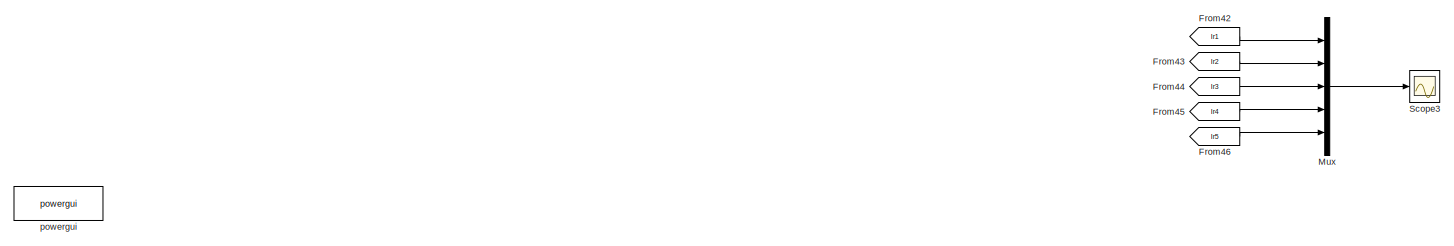
[diagram: root canvas - part 1/4, top center region]
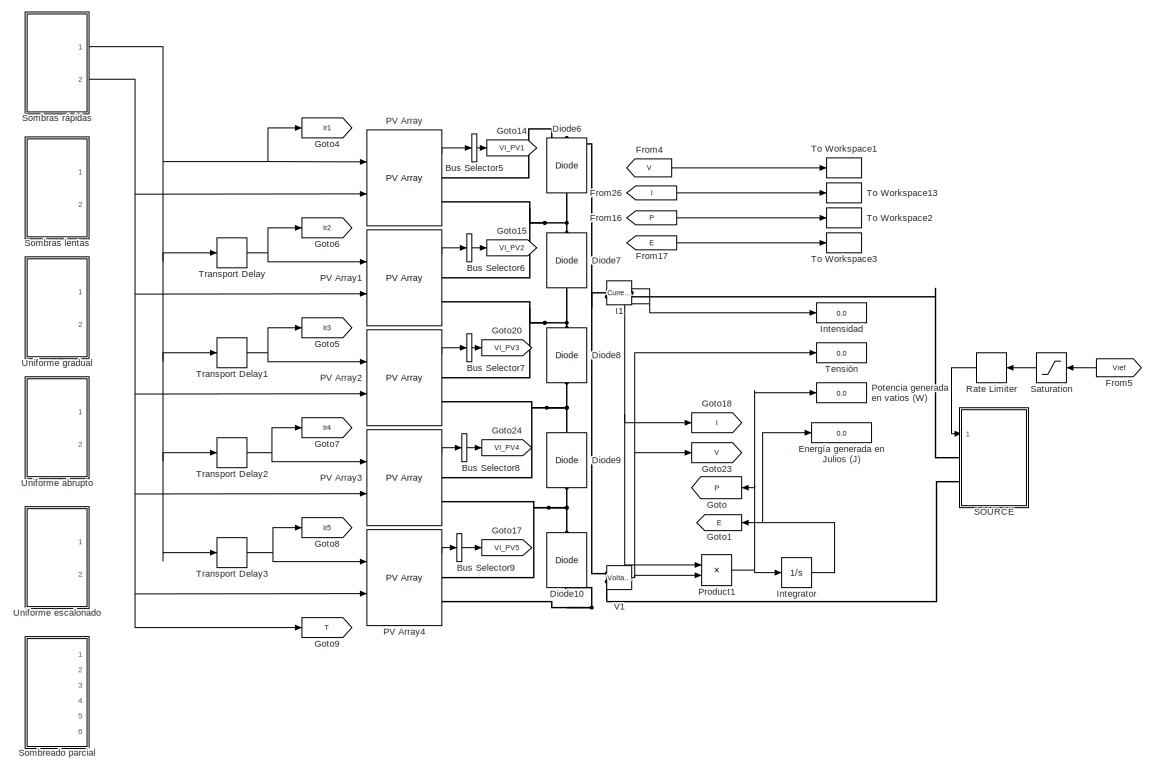
[diagram: root canvas - part 2/4, top right region]
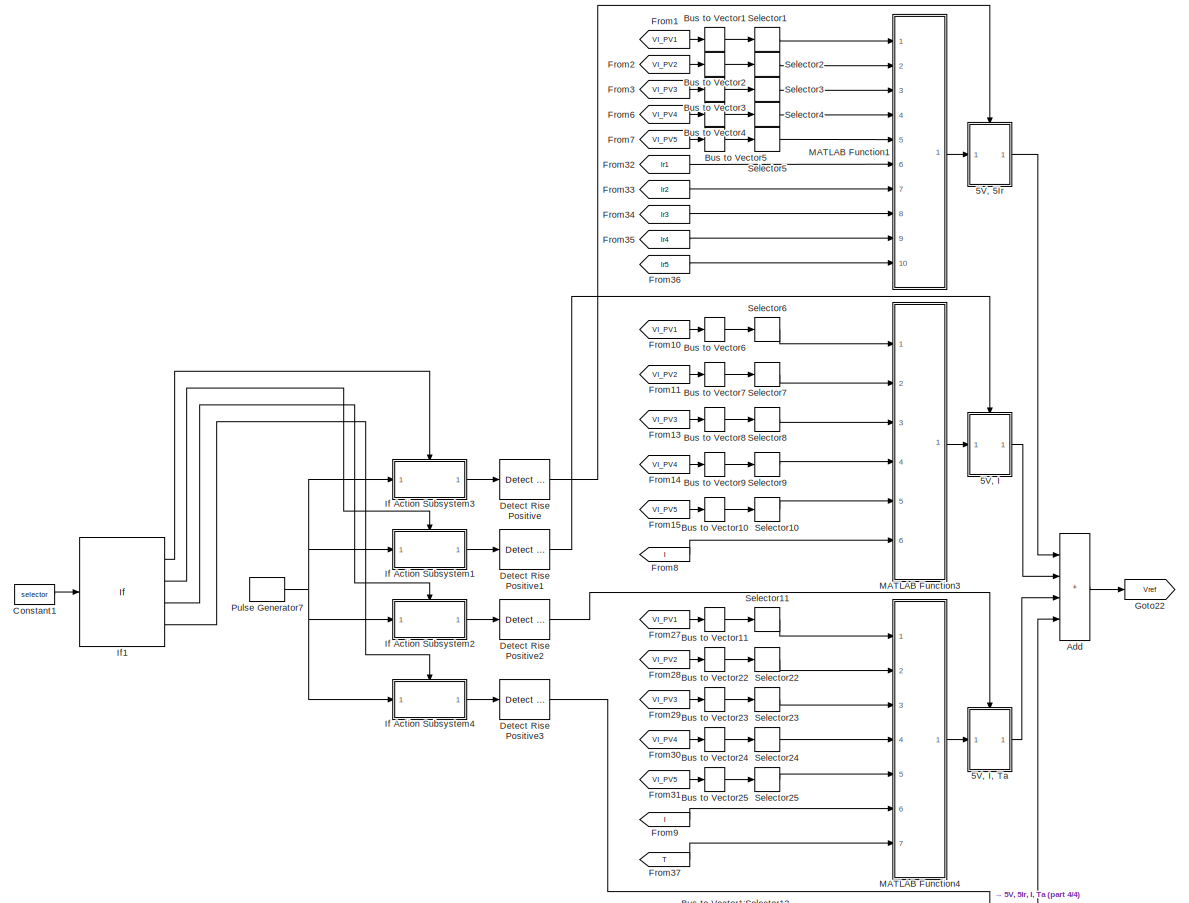
[diagram: root canvas - part 3/4, bottom right region]
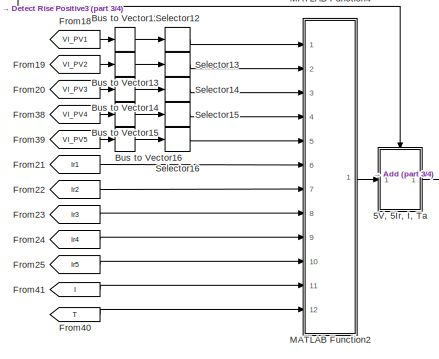
[diagram: root canvas - part 4/4, bottom right region]
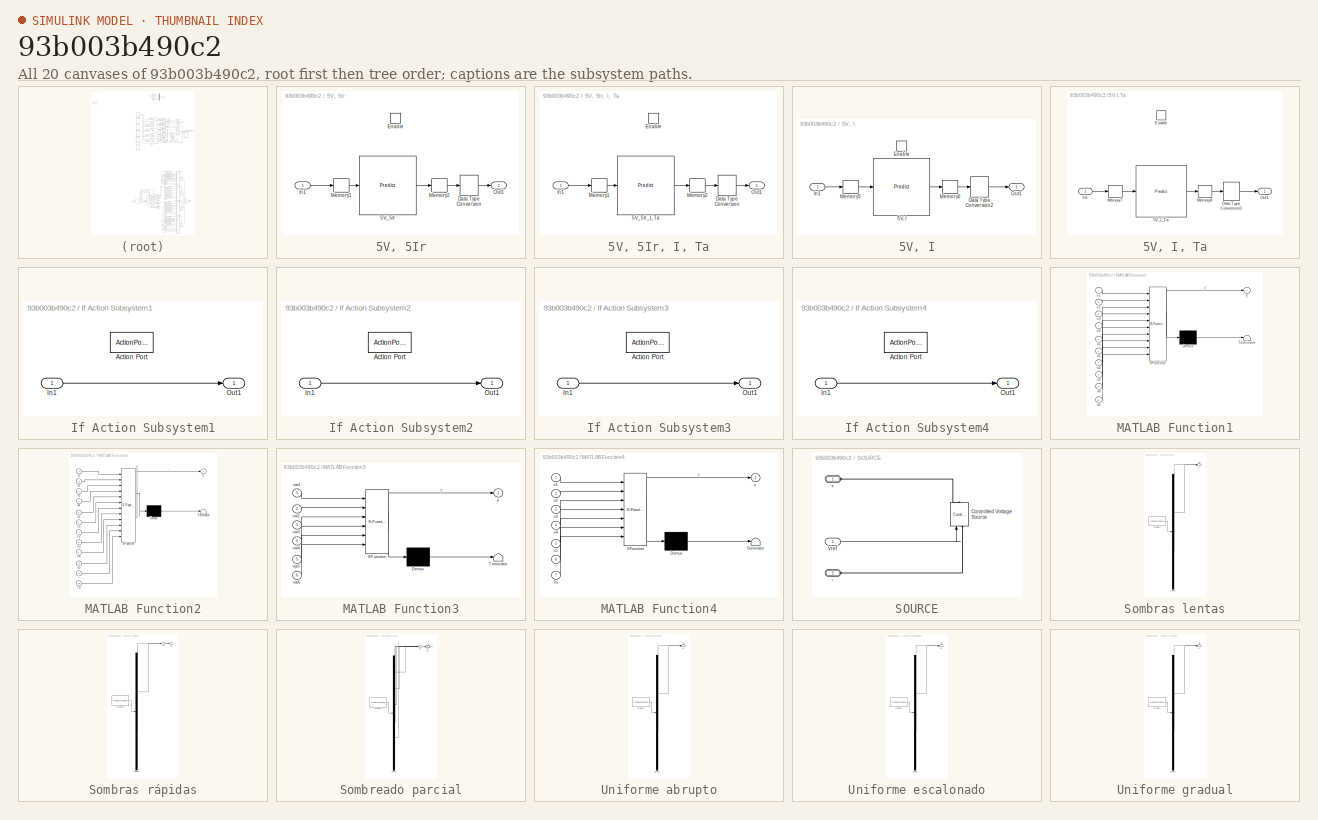
[diagram: thumbnail index - all 20 canvases of the model, root first then tree order]
MODEL slx_93b003b490c2
KIND model
CONFIG AbsTol = auto
CONFIG EnableMultiTasking = off
CONFIG FixedStep = auto
CONFIG MaxStep = auto
CONFIG MinStep = auto
CONFIG RelTol = 1e-4
CONFIG SampleTimeConstraint = Unconstrained
CONFIG SolverName = VariableStepAuto
CONFIG StartTime = 0.0
CONFIG StopTime = 60
BLOCK [SubSystem] 5V, 5Ir
  Ports = [1, 1, 1]
  RequestExecContextInheritance = off
BLOCK [SubSystem] 5V, 5Ir, I, Ta
  Ports = [1, 1, 1]
  RequestExecContextInheritance = off
BLOCK [Reference] 5V, 5Ir, I, Ta/5V_5Ir_I_Ta  REF=deeplib/Predict
  Ports = [1, 1]
  SourceBlock = deeplib/Predict
  SourceProductBaseCode = NN
  SourceType = Predict
BLOCK [DataTypeConversion] 5V, 5Ir, I, Ta/Data Type Conversion
  OutDataTypeStr = double
  RndMeth = Floor
  SaturateOnIntegerOverflow = off
BLOCK [EnablePort] 5V, 5Ir, I, Ta/Enable
  Ports = []
BLOCK [Inport] 5V, 5Ir, I, Ta/In1
BLOCK [Memory] 5V, 5Ir, I, Ta/Memory1
BLOCK [Memory] 5V, 5Ir, I, Ta/Memory2
BLOCK [Outport] 5V, 5Ir, I, Ta/Out1
BLOCK [Reference] 5V, 5Ir/5V_5Ir  REF=deeplib/Predict
  Ports = [1, 1]
  SourceBlock = deeplib/Predict
  SourceProductBaseCode = NN
  SourceType = Predict
BLOCK [DataTypeConversion] 5V, 5Ir/Data Type Conversion
  OutDataTypeStr = double
  RndMeth = Floor
  SaturateOnIntegerOverflow = off
BLOCK [EnablePort] 5V, 5Ir/Enable
  Ports = []
BLOCK [Inport] 5V, 5Ir/In1
BLOCK [Memory] 5V, 5Ir/Memory1
BLOCK [Memory] 5V, 5Ir/Memory2
BLOCK [Outport] 5V, 5Ir/Out1
BLOCK [SubSystem] 5V, I
  Ports = [1, 1, 1]
  RequestExecContextInheritance = off
BLOCK [SubSystem] 5V, I, Ta
  Ports = [1, 1, 1]
  RequestExecContextInheritance = off
BLOCK [Reference] 5V, I, Ta/5V_I_Ta  REF=deeplib/Predict
  Ports = [1, 1]
  SourceBlock = deeplib/Predict
  SourceProductBaseCode = NN
  SourceType = Predict
BLOCK [DataTypeConversion] 5V, I, Ta/Data Type Conversion3
  OutDataTypeStr = double
  RndMeth = Floor
  SaturateOnIntegerOverflow = off
BLOCK [EnablePort] 5V, I, Ta/Enable
  Ports = []
BLOCK [Inport] 5V, I, Ta/In1
BLOCK [Memory] 5V, I, Ta/Memory7
BLOCK [Memory] 5V, I, Ta/Memory8
BLOCK [Outport] 5V, I, Ta/Out1
BLOCK [Reference] 5V, I/5V, I  REF=deeplib/Predict
  Ports = [1, 1]
  SourceBlock = deeplib/Predict
  SourceProductBaseCode = NN
  SourceType = Predict
BLOCK [DataTypeConversion] 5V, I/Data Type Conversion2
  OutDataTypeStr = double
  RndMeth = Floor
  SaturateOnIntegerOverflow = off
BLOCK [EnablePort] 5V, I/Enable
  Ports = []
BLOCK [Inport] 5V, I/In1
BLOCK [Memory] 5V, I/Memory5
BLOCK [Memory] 5V, I/Memory6
BLOCK [Outport] 5V, I/Out1
BLOCK [Sum] Add
  IconShape = rectangular
  Inputs = ++++
  Ports = [4, 1]
BLOCK [BusSelector] Bus Selector5
  NameLocation = top
  OutputAsBus = on
  OutputSignals = V_PV,I_PV
  Ports = [1, 1]
BLOCK [BusSelector] Bus Selector6
  OutputAsBus = on
  OutputSignals = V_PV,I_PV
  Ports = [1, 1]
BLOCK [BusSelector] Bus Selector7
  OutputAsBus = on
  OutputSignals = V_PV,I_PV
  Ports = [1, 1]
BLOCK [BusSelector] Bus Selector8
  OutputAsBus = on
  OutputSignals = V_PV,I_PV
  Ports = [1, 1]
BLOCK [BusSelector] Bus Selector9
  OutputAsBus = on
  OutputSignals = V_PV,I_PV
  Ports = [1, 1]
BLOCK [BusToVector] Bus to Vector1
BLOCK [BusToVector] Bus to Vector10
BLOCK [BusToVector] Bus to Vector11
BLOCK [BusToVector] Bus to Vector12
BLOCK [BusToVector] Bus to Vector13
BLOCK [BusToVector] Bus to Vector14
BLOCK [BusToVector] Bus to Vector15
BLOCK [BusToVector] Bus to Vector16
BLOCK [BusToVector] Bus to Vector2
BLOCK [BusToVector] Bus to Vector22
BLOCK [BusToVector] Bus to Vector23
BLOCK [BusToVector] Bus to Vector24
BLOCK [BusToVector] Bus to Vector25
BLOCK [BusToVector] Bus to Vector3
BLOCK [BusToVector] Bus to Vector4
BLOCK [BusToVector] Bus to Vector5
BLOCK [BusToVector] Bus to Vector6
BLOCK [BusToVector] Bus to Vector7
BLOCK [BusToVector] Bus to Vector8
BLOCK [BusToVector] Bus to Vector9
BLOCK [Constant] Constant1
  Value = selector
BLOCK [Reference] Detect Rise Positive  REF=simulink/Logic and Bit
Operations/Detect Rise
Positive
  Ports = [1, 1]
  SourceBlock = simulink/Logic and Bit\nOperations/Detect Rise\nPositive
  SourceProductBaseCode = SL
  SourceType = Detect Rise Positive
BLOCK [Reference] Detect Rise Positive1  REF=simulink/Logic and Bit
Operations/Detect Rise
Positive
  Ports = [1, 1]
  SourceBlock = simulink/Logic and Bit\nOperations/Detect Rise\nPositive
  SourceProductBaseCode = SL
  SourceType = Detect Rise Positive
BLOCK [Reference] Detect Rise Positive2  REF=simulink/Logic and Bit
Operations/Detect Rise
Positive
  Ports = [1, 1]
  SourceBlock = simulink/Logic and Bit\nOperations/Detect Rise\nPositive
  SourceProductBaseCode = SL
  SourceType = Detect Rise Positive
BLOCK [Reference] Detect Rise Positive3  REF=simulink/Logic and Bit
Operations/Detect Rise
Positive
  Ports = [1, 1]
  SourceBlock = simulink/Logic and Bit\nOperations/Detect Rise\nPositive
  SourceProductBaseCode = SL
  SourceType = Detect Rise Positive
BLOCK [Reference] Diode10  REF=spsDiodeLib/Diode
  NameLocation = right
  Ports = [0, 0, 0, 0, 0, 1, 1]
  SourceBlock = spsDiodeLib/Diode
  SourceProductBaseCode = PS
  SourceType = Diode
BLOCK [Reference] Diode6  REF=spsDiodeLib/Diode
  NameLocation = right
  Ports = [0, 0, 0, 0, 0, 1, 1]
  SourceBlock = spsDiodeLib/Diode
  SourceProductBaseCode = PS
  SourceType = Diode
BLOCK [Reference] Diode7  REF=spsDiodeLib/Diode
  NameLocation = right
  Ports = [0, 0, 0, 0, 0, 1, 1]
  SourceBlock = spsDiodeLib/Diode
  SourceProductBaseCode = PS
  SourceType = Diode
BLOCK [Reference] Diode8  REF=spsDiodeLib/Diode
  NameLocation = right
  Ports = [0, 0, 0, 0, 0, 1, 1]
  SourceBlock = spsDiodeLib/Diode
  SourceProductBaseCode = PS
  SourceType = Diode
BLOCK [Reference] Diode9  REF=spsDiodeLib/Diode
  NameLocation = right
  Ports = [0, 0, 0, 0, 0, 1, 1]
  SourceBlock = spsDiodeLib/Diode
  SourceProductBaseCode = PS
  SourceType = Diode
BLOCK [Display] Energía generada en Julios (J) 
  Decimation = 1
  Ports = [1]
BLOCK [From] From1
  GotoTag = VI_PV1
BLOCK [From] From10
  GotoTag = VI_PV1
BLOCK [From] From11
  GotoTag = VI_PV2
BLOCK [From] From13
  GotoTag = VI_PV3
BLOCK [From] From14
  GotoTag = VI_PV4
BLOCK [From] From15
  GotoTag = VI_PV5
BLOCK [From] From16
  GotoTag = P
BLOCK [From] From17
  GotoTag = E
BLOCK [From] From18
  GotoTag = VI_PV1
BLOCK [From] From19
  GotoTag = VI_PV2
BLOCK [From] From2
  GotoTag = VI_PV2
BLOCK [From] From20
  GotoTag = VI_PV3
BLOCK [From] From21
  GotoTag = Ir1
BLOCK [From] From22
  GotoTag = Ir2
BLOCK [From] From23
  GotoTag = Ir3
BLOCK [From] From24
  GotoTag = Ir4
BLOCK [From] From25
  GotoTag = Ir5
BLOCK [From] From26
  GotoTag = I
BLOCK [From] From27
  GotoTag = VI_PV1
BLOCK [From] From28
  GotoTag = VI_PV2
BLOCK [From] From29
  GotoTag = VI_PV3
BLOCK [From] From3
  GotoTag = VI_PV3
BLOCK [From] From30
  GotoTag = VI_PV4
BLOCK [From] From31
  GotoTag = VI_PV5
BLOCK [From] From32
  GotoTag = Ir1
BLOCK [From] From33
  GotoTag = Ir2
BLOCK [From] From34
  GotoTag = Ir3
BLOCK [From] From35
  GotoTag = Ir4
BLOCK [From] From36
  GotoTag = Ir5
BLOCK [From] From37
  GotoTag = T
BLOCK [From] From38
  GotoTag = VI_PV4
BLOCK [From] From39
  GotoTag = VI_PV5
BLOCK [From] From4
  GotoTag = V
BLOCK [From] From40
  GotoTag = T
BLOCK [From] From41
  GotoTag = I
BLOCK [From] From42
  Commented = on
  GotoTag = Ir1
BLOCK [From] From43
  Commented = on
  GotoTag = Ir2
BLOCK [From] From44
  Commented = on
  GotoTag = Ir3
BLOCK [From] From45
  Commented = on
  GotoTag = Ir4
BLOCK [From] From46
  Commented = on
  GotoTag = Ir5
BLOCK [From] From5
  GotoTag = Vref
BLOCK [From] From6
  GotoTag = VI_PV4
BLOCK [From] From7
  GotoTag = VI_PV5
BLOCK [From] From8
  GotoTag = I
BLOCK [From] From9
  GotoTag = I
BLOCK [Goto] Goto
  GotoTag = P
BLOCK [Goto] Goto1
  GotoTag = E
BLOCK [Goto] Goto14
  GotoTag = VI_PV1
  NameLocation = top
BLOCK [Goto] Goto15
  GotoTag = VI_PV2
BLOCK [Goto] Goto17
  GotoTag = VI_PV5
BLOCK [Goto] Goto18
  GotoTag = I
BLOCK [Goto] Goto20
  GotoTag = VI_PV3
BLOCK [Goto] Goto22
  GotoTag = Vref
BLOCK [Goto] Goto23
  GotoTag = V
BLOCK [Goto] Goto24
  GotoTag = VI_PV4
BLOCK [Goto] Goto4
  GotoTag = Ir1
BLOCK [Goto] Goto5
  GotoTag = Ir3
BLOCK [Goto] Goto6
  GotoTag = Ir2
BLOCK [Goto] Goto7
  GotoTag = Ir4
BLOCK [Goto] Goto8
  GotoTag = Ir5
BLOCK [Goto] Goto9
  GotoTag = T
BLOCK [Reference] I1  REF=spsCurrentMeasurementLib/Current Measurement
  Ports = [0, 1, 0, 0, 0, 1, 1]
  SourceBlock = spsCurrentMeasurementLib/Current Measurement
  SourceProductBaseCode = PS
  SourceType = Current Measurement
  UserDataPersistent = on
BLOCK [SubSystem] If Action Subsystem1
  Ports = [1, 1, 0, 0, 0, 0, 0, 1]
  RequestExecContextInheritance = off
  TreatAsAtomicUnit = on
BLOCK [ActionPort] If Action Subsystem1/Action Port
  ActionPortLabel = elseif(u1 == 2)
  InitializeStates = reset
BLOCK [Inport] If Action Subsystem1/In1
BLOCK [Outport] If Action Subsystem1/Out1
BLOCK [SubSystem] If Action Subsystem2
  Ports = [1, 1, 0, 0, 0, 0, 0, 1]
  RequestExecContextInheritance = off
  TreatAsAtomicUnit = on
BLOCK [ActionPort] If Action Subsystem2/Action Port
  ActionPortLabel = elseif( u1==3)
  InitializeStates = reset
BLOCK [Inport] If Action Subsystem2/In1
BLOCK [Outport] If Action Subsystem2/Out1
BLOCK [SubSystem] If Action Subsystem3
  Ports = [1, 1, 0, 0, 0, 0, 0, 1]
  RequestExecContextInheritance = off
  TreatAsAtomicUnit = on
BLOCK [ActionPort] If Action Subsystem3/Action Port
  ActionPortLabel = if(u1 == 1)
  InitializeStates = reset
BLOCK [Inport] If Action Subsystem3/In1
BLOCK [Outport] If Action Subsystem3/Out1
BLOCK [SubSystem] If Action Subsystem4
  Ports = [1, 1, 0, 0, 0, 0, 0, 1]
  RequestExecContextInheritance = off
  TreatAsAtomicUnit = on
BLOCK [ActionPort] If Action Subsystem4/Action Port
  ActionPortLabel = elseif( u1==4)
  InitializeStates = reset
BLOCK [Inport] If Action Subsystem4/In1
BLOCK [Outport] If Action Subsystem4/Out1
BLOCK [If] If1
  ElseIfExpressions = u1 == 2, u1==3, u1==4
  IfExpression = u1 == 1
  Ports = [1, 4]
  ShowElse = off
BLOCK [Integrator] Integrator
  Ports = [1, 1]
BLOCK [Display] Intensidad
  Decimation = 1
  Ports = [1]
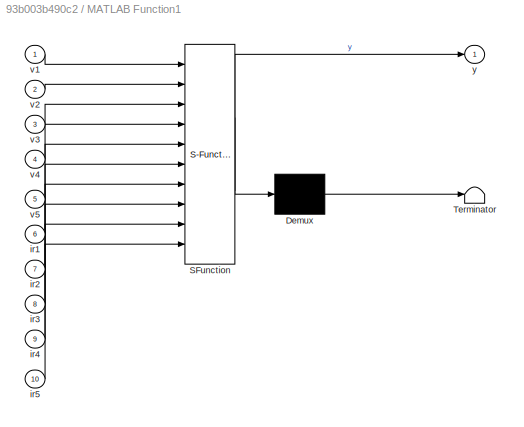
BLOCK [SubSystem] MATLAB Function1
  ErrorFcn = Stateflow.Translate.translate
  PermitHierarchicalResolution = ExplicitOnly
  Ports = [10, 1]
  RequestExecContextInheritance = off
  SFBlockType = MATLAB Function
  TreatAsAtomicUnit = on
BLOCK [Demux] MATLAB Function1/ Demux 
  Outputs = 1
  Ports = [1, 1]
BLOCK [S-Function] MATLAB Function1/ SFunction 
  EnableBusSupport = on
  FunctionName = sf_sfun
  PortCounts = [10 2]
  Ports = [10, 2]
  SFcnIsStateOwnerBlock = off
  SFunctionDeploymentMode = off
  Tag = Stateflow S-Function 3
BLOCK [Terminator] MATLAB Function1/ Terminator 
BLOCK [Inport] MATLAB Function1/ir1
  Port = 6
BLOCK [Inport] MATLAB Function1/ir2
  Port = 7
BLOCK [Inport] MATLAB Function1/ir3
  Port = 8
BLOCK [Inport] MATLAB Function1/ir4
  Port = 9
BLOCK [Inport] MATLAB Function1/ir5
  Port = 10
BLOCK [Inport] MATLAB Function1/v1
BLOCK [Inport] MATLAB Function1/v2
  Port = 2
BLOCK [Inport] MATLAB Function1/v3
  Port = 3
BLOCK [Inport] MATLAB Function1/v4
  Port = 4
BLOCK [Inport] MATLAB Function1/v5
  Port = 5
BLOCK [Outport] MATLAB Function1/y
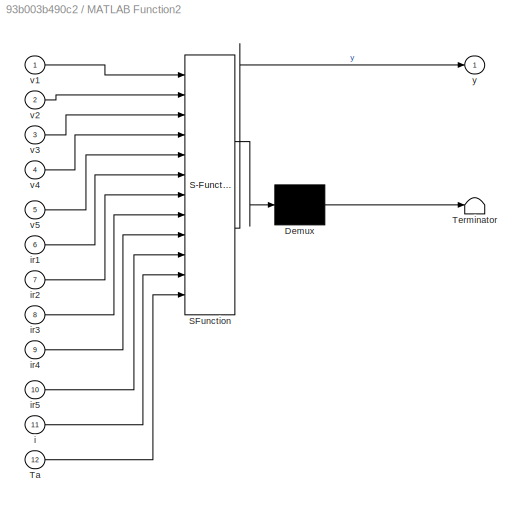
BLOCK [SubSystem] MATLAB Function2
  ErrorFcn = Stateflow.Translate.translate
  PermitHierarchicalResolution = ExplicitOnly
  Ports = [12, 1]
  RequestExecContextInheritance = off
  SFBlockType = MATLAB Function
  TreatAsAtomicUnit = on
BLOCK [Demux] MATLAB Function2/ Demux 
  Outputs = 1
  Ports = [1, 1]
BLOCK [S-Function] MATLAB Function2/ SFunction 
  EnableBusSupport = on
  FunctionName = sf_sfun
  PortCounts = [12 2]
  Ports = [12, 2]
  SFcnIsStateOwnerBlock = off
  SFunctionDeploymentMode = off
  Tag = Stateflow S-Function 7
BLOCK [Terminator] MATLAB Function2/ Terminator 
BLOCK [Inport] MATLAB Function2/Ta
  Port = 12
BLOCK [Inport] MATLAB Function2/i
  Port = 11
BLOCK [Inport] MATLAB Function2/ir1
  Port = 6
BLOCK [Inport] MATLAB Function2/ir2
  Port = 7
BLOCK [Inport] MATLAB Function2/ir3
  Port = 8
BLOCK [Inport] MATLAB Function2/ir4
  Port = 9
BLOCK [Inport] MATLAB Function2/ir5
  Port = 10
BLOCK [Inport] MATLAB Function2/v1
BLOCK [Inport] MATLAB Function2/v2
  Port = 2
BLOCK [Inport] MATLAB Function2/v3
  Port = 3
BLOCK [Inport] MATLAB Function2/v4
  Port = 4
BLOCK [Inport] MATLAB Function2/v5
  Port = 5
BLOCK [Outport] MATLAB Function2/y
BLOCK [SubSystem] MATLAB Function3
  ErrorFcn = Stateflow.Translate.translate
  PermitHierarchicalResolution = ExplicitOnly
  Ports = [6, 1]
  RequestExecContextInheritance = off
  SFBlockType = MATLAB Function
  TreatAsAtomicUnit = on
BLOCK [Demux] MATLAB Function3/ Demux 
  Outputs = 1
  Ports = [1, 1]
BLOCK [S-Function] MATLAB Function3/ SFunction 
  EnableBusSupport = on
  FunctionName = sf_sfun
  PortCounts = [6 2]
  Ports = [6, 2]
  SFcnIsStateOwnerBlock = off
  SFunctionDeploymentMode = off
  Tag = Stateflow S-Function 5
BLOCK [Terminator] MATLAB Function3/ Terminator 
BLOCK [Inport] MATLAB Function3/var1
BLOCK [Inport] MATLAB Function3/var2
  Port = 2
BLOCK [Inport] MATLAB Function3/var3
  Port = 3
BLOCK [Inport] MATLAB Function3/var4
  Port = 4
BLOCK [Inport] MATLAB Function3/var5
  Port = 5
BLOCK [Inport] MATLAB Function3/var6
  Port = 6
BLOCK [Outport] MATLAB Function3/y
BLOCK [SubSystem] MATLAB Function4
  ErrorFcn = Stateflow.Translate.translate
  PermitHierarchicalResolution = ExplicitOnly
  Ports = [7, 1]
  RequestExecContextInheritance = off
  SFBlockType = MATLAB Function
  TreatAsAtomicUnit = on
BLOCK [Demux] MATLAB Function4/ Demux 
  Outputs = 1
  Ports = [1, 1]
BLOCK [S-Function] MATLAB Function4/ SFunction 
  EnableBusSupport = on
  FunctionName = sf_sfun
  PortCounts = [7 2]
  Ports = [7, 2]
  SFcnIsStateOwnerBlock = off
  SFunctionDeploymentMode = off
  Tag = Stateflow S-Function 6
BLOCK [Terminator] MATLAB Function4/ Terminator 
BLOCK [Inport] MATLAB Function4/Ta
  Port = 7
BLOCK [Inport] MATLAB Function4/i
  Port = 6
BLOCK [Inport] MATLAB Function4/v1
BLOCK [Inport] MATLAB Function4/v2
  Port = 2
BLOCK [Inport] MATLAB Function4/v3
  Port = 3
BLOCK [Inport] MATLAB Function4/v4
  Port = 4
BLOCK [Inport] MATLAB Function4/v5
  Port = 5
BLOCK [Outport] MATLAB Function4/y
BLOCK [Mux] Mux
  Commented = on
  DisplayOption = bar
  Inputs = 5
  Ports = [5, 1]
BLOCK [Reference] PV Array  REF=spsPVArrayLib/PV Array
  Ports = [2, 1, 0, 0, 0, 0, 2]
  SourceBlock = spsPVArrayLib/PV Array
  SourceProductBaseCode = PS
  SourceType = PV array
BLOCK [Reference] PV Array1  REF=spsPVArrayLib/PV Array
  Ports = [2, 1, 0, 0, 0, 0, 2]
  SourceBlock = spsPVArrayLib/PV Array
  SourceProductBaseCode = PS
  SourceType = PV array
BLOCK [Reference] PV Array2  REF=spsPVArrayLib/PV Array
  Ports = [2, 1, 0, 0, 0, 0, 2]
  SourceBlock = spsPVArrayLib/PV Array
  SourceProductBaseCode = PS
  SourceType = PV array
BLOCK [Reference] PV Array3  REF=spsPVArrayLib/PV Array
  Ports = [2, 1, 0, 0, 0, 0, 2]
  SourceBlock = spsPVArrayLib/PV Array
  SourceProductBaseCode = PS
  SourceType = PV array
BLOCK [Reference] PV Array4  REF=spsPVArrayLib/PV Array
  Ports = [2, 1, 0, 0, 0, 0, 2]
  SourceBlock = spsPVArrayLib/PV Array
  SourceProductBaseCode = PS
  SourceType = PV array
BLOCK [Display] Potencia generada en vatios (W) 
  Decimation = 1
  Ports = [1]
BLOCK [Product] Product1
  NameLocation = top
  Ports = [2, 1]
BLOCK [DiscretePulseGenerator] Pulse Generator7
  AttributesFormatString = Period: %<period>\nDuty cycle: %<pulsewidth>%
  Period = 1e-3
  Ports = [0, 1]
  PulseType = Time based
  PulseWidth = 20
BLOCK [RateLimiter] Rate Limiter
  FallingSlewLimit = -100000
  InitialCondition = 150
  RisingSlewLimit = 100000
  SampleTimeMode = inherited
BLOCK [SubSystem] SOURCE
  Ports = [1, 0, 0, 0, 0, 2]
  RequestExecContextInheritance = off
BLOCK [PMIOPort] SOURCE/+
  Side = Left
BLOCK [PMIOPort] SOURCE/-
  Port = 2
  Side = Left
BLOCK [Reference] SOURCE/Controlled Voltage Source  REF=spsControlledVoltageSourceLib/Controlled Voltage Source
  NameLocation = right
  Ports = [1, 0, 0, 0, 0, 1, 1]
  SourceBlock = spsControlledVoltageSourceLib/Controlled Voltage Source
  SourceProductBaseCode = PS
  SourceType = Controlled Voltage Source
BLOCK [Inport] SOURCE/Vref
BLOCK [Saturate] Saturation
  LowerLimit = 40
  UpperLimit = 290
BLOCK [Scope] Scope3
  Commented = on
  Floating = off
  NumInputPorts = 1
  Ports = [1]
  ScopeSpecificationString = Simulink.scopes.TimeScopeBlockCfg('CurrentConfiguration', extmgr.ConfigurationSet(extmgr.Configuration('Core','General UI',true),extmgr.Configuration('Core','Source UI',true),extmgr.Configuration('Sources','WiredSimulink',true,'DataLoggingVariableName','ScopeData3'),extmgr.Configuration('Visuals','Time Domain',true,'SerializedDisplays',{struct('MinYLimReal','212.5','MaxYLimReal','987.5','YLabelRea...<+1461ch>
BLOCK [Selector] Selector1
  IndexOptions = Index vector (dialog)
  Indices = [1]
  InputPortWidth = 2
  OutputSizes = 1
  Ports = [1, 1]
BLOCK [Selector] Selector10
  IndexOptions = Index vector (dialog)
  Indices = [1]
  InputPortWidth = 2
  OutputSizes = 1
  Ports = [1, 1]
BLOCK [Selector] Selector11
  IndexOptions = Index vector (dialog)
  Indices = [1]
  InputPortWidth = 2
  OutputSizes = 1
  Ports = [1, 1]
BLOCK [Selector] Selector12
  IndexOptions = Index vector (dialog)
  Indices = [1]
  InputPortWidth = 2
  OutputSizes = 1
  Ports = [1, 1]
BLOCK [Selector] Selector13
  IndexOptions = Index vector (dialog)
  Indices = [1]
  InputPortWidth = 2
  OutputSizes = 1
  Ports = [1, 1]
BLOCK [Selector] Selector14
  IndexOptions = Index vector (dialog)
  Indices = [1]
  InputPortWidth = 2
  OutputSizes = 1
  Ports = [1, 1]
BLOCK [Selector] Selector15
  IndexOptions = Index vector (dialog)
  Indices = [1]
  InputPortWidth = 2
  OutputSizes = 1
  Ports = [1, 1]
BLOCK [Selector] Selector16
  IndexOptions = Index vector (dialog)
  Indices = [1]
  InputPortWidth = 2
  OutputSizes = 1
  Ports = [1, 1]
BLOCK [Selector] Selector2
  IndexOptions = Index vector (dialog)
  Indices = [1]
  InputPortWidth = 2
  OutputSizes = 1
  Ports = [1, 1]
BLOCK [Selector] Selector22
  IndexOptions = Index vector (dialog)
  Indices = [1]
  InputPortWidth = 2
  OutputSizes = 1
  Ports = [1, 1]
BLOCK [Selector] Selector23
  IndexOptions = Index vector (dialog)
  Indices = [1]
  InputPortWidth = 2
  OutputSizes = 1
  Ports = [1, 1]
BLOCK [Selector] Selector24
  IndexOptions = Index vector (dialog)
  Indices = [1]
  InputPortWidth = 2
  OutputSizes = 1
  Ports = [1, 1]
BLOCK [Selector] Selector25
  IndexOptions = Index vector (dialog)
  Indices = [1]
  InputPortWidth = 2
  OutputSizes = 1
  Ports = [1, 1]
BLOCK [Selector] Selector3
  IndexOptions = Index vector (dialog)
  Indices = [1]
  InputPortWidth = 2
  OutputSizes = 1
  Ports = [1, 1]
BLOCK [Selector] Selector4
  IndexOptions = Index vector (dialog)
  Indices = [1]
  InputPortWidth = 2
  OutputSizes = 1
  Ports = [1, 1]
BLOCK [Selector] Selector5
  IndexOptions = Index vector (dialog)
  Indices = [1]
  InputPortWidth = 2
  OutputSizes = 1
  Ports = [1, 1]
BLOCK [Selector] Selector6
  IndexOptions = Index vector (dialog)
  Indices = [1]
  InputPortWidth = 2
  OutputSizes = 1
  Ports = [1, 1]
BLOCK [Selector] Selector7
  IndexOptions = Index vector (dialog)
  Indices = [1]
  InputPortWidth = 2
  OutputSizes = 1
  Ports = [1, 1]
BLOCK [Selector] Selector8
  IndexOptions = Index vector (dialog)
  Indices = [1]
  InputPortWidth = 2
  OutputSizes = 1
  Ports = [1, 1]
BLOCK [Selector] Selector9
  IndexOptions = Index vector (dialog)
  Indices = [1]
  InputPortWidth = 2
  OutputSizes = 1
  Ports = [1, 1]
BLOCK [SubSystem] Sombras lentas
  ClipboardFcn = sigbuilder_block('clipboard');
  CloseFcn = sigbuilder_block('close');
  ContinueFcn = sigbuilder_block('continue');
  CopyFcn = sigbuilder_block('copy');
  DeleteFcn = sigbuilder_block('delete');
  LoadFcn = sigbuilder_block('load');
  MaskHideContents = on
  ModelCloseFcn = sigbuilder_block('modelClose');
  NameChangeFcn = sigbuilder_block('namechange');
  OpenFcn = sigbuilder_block('open',[6 30 1908 951.75 ]);
  PauseFcn = sigbuilder_block('pause');
  Ports = [0, 2]
  PreSaveFcn = sigbuilder_block('preSave');
  RequestExecContextInheritance = off
  StartFcn = sigbuilder_block('start');
  StopFcn = sigbuilder_block('stop');
  Tag = STV Subsys
BLOCK [Demux] Sombras lentas/Demux
  DisplayOption = none
  Outputs = 2
  Ports = [1, 2]
  Tag = STV Demux
BLOCK [FromWorkspace] Sombras lentas/FromWs
  Tag = STV FromWs
  VariableName = tuvar
BLOCK [Outport] Sombras lentas/Ir1
  Tag = STV Outport
BLOCK [Outport] Sombras lentas/Ta
  Port = 2
  Tag = STV Outport
BLOCK [SubSystem] Sombras rápidas
  ClipboardFcn = sigbuilder_block('clipboard');
  CloseFcn = sigbuilder_block('close');
  ContinueFcn = sigbuilder_block('continue');
  CopyFcn = sigbuilder_block('copy');
  DeleteFcn = sigbuilder_block('delete');
  LoadFcn = sigbuilder_block('load');
  MaskHideContents = on
  ModelCloseFcn = sigbuilder_block('modelClose');
  NameChangeFcn = sigbuilder_block('namechange');
  OpenFcn = sigbuilder_block('open',[6 30 1908 951.75 ]);
  PauseFcn = sigbuilder_block('pause');
  Ports = [0, 2]
  PreSaveFcn = sigbuilder_block('preSave');
  RequestExecContextInheritance = off
  StartFcn = sigbuilder_block('start');
  StopFcn = sigbuilder_block('stop');
  Tag = STV Subsys
BLOCK [Demux] Sombras rápidas/Demux
  DisplayOption = none
  Outputs = 2
  Ports = [1, 2]
  Tag = STV Demux
BLOCK [FromWorkspace] Sombras rápidas/FromWs
  Tag = STV FromWs
  VariableName = tuvar
BLOCK [Outport] Sombras rápidas/Ir1
  Tag = STV Outport
BLOCK [Outport] Sombras rápidas/Ta
  Port = 2
  Tag = STV Outport
BLOCK [SubSystem] Sombreado parcial
  ClipboardFcn = sigbuilder_block('clipboard');
  CloseFcn = sigbuilder_block('close');
  ContinueFcn = sigbuilder_block('continue');
  CopyFcn = sigbuilder_block('copy');
  DeleteFcn = sigbuilder_block('delete');
  LoadFcn = sigbuilder_block('load');
  MaskHideContents = on
  ModelCloseFcn = sigbuilder_block('modelClose');
  NameChangeFcn = sigbuilder_block('namechange');
  OpenFcn = sigbuilder_block('open',[6 30 1908 951.75 ]);
  PauseFcn = sigbuilder_block('pause');
  Ports = [0, 6]
  PreSaveFcn = sigbuilder_block('preSave');
  RequestExecContextInheritance = off
  StartFcn = sigbuilder_block('start');
  StopFcn = sigbuilder_block('stop');
  Tag = STV Subsys
BLOCK [Demux] Sombreado parcial/Demux
  DisplayOption = none
  Outputs = 6
  Ports = [1, 6]
  Tag = STV Demux
BLOCK [FromWorkspace] Sombreado parcial/FromWs
  Tag = STV FromWs
  VariableName = tuvar
BLOCK [Outport] Sombreado parcial/Ir1
  Tag = STV Outport
BLOCK [Outport] Sombreado parcial/Ir2
  Port = 2
  Tag = STV Outport
BLOCK [Outport] Sombreado parcial/Ir3
  Port = 3
  Tag = STV Outport
BLOCK [Outport] Sombreado parcial/Ir4
  Port = 4
  Tag = STV Outport
BLOCK [Outport] Sombreado parcial/Ir5
  Port = 5
  Tag = STV Outport
BLOCK [Outport] Sombreado parcial/Ta1
  Port = 6
  Tag = STV Outport
BLOCK [Display] Tensión
  Decimation = 1
  Ports = [1]
BLOCK [ToWorkspace] To Workspace1
  FixptAsFi = on
  MaxDataPoints = inf
  Ports = [1]
  SampleTime = 1e-3
  VariableName = V
BLOCK [ToWorkspace] To Workspace13
  FixptAsFi = on
  MaxDataPoints = inf
  Ports = [1]
  SampleTime = 1e-3
  VariableName = I
BLOCK [ToWorkspace] To Workspace2
  FixptAsFi = on
  MaxDataPoints = inf
  Ports = [1]
  SampleTime = 1e-3
  VariableName = P
BLOCK [ToWorkspace] To Workspace3
  FixptAsFi = on
  MaxDataPoints = inf
  Ports = [1]
  SampleTime = 1e-3
  VariableName = E
BLOCK [TransportDelay] Transport Delay
  DelayTime = 0.1
  InitialOutput = 1000
  Ports = [1, 1]
BLOCK [TransportDelay] Transport Delay1
  DelayTime = 0.2
  InitialOutput = 1000
  Ports = [1, 1]
BLOCK [TransportDelay] Transport Delay2
  DelayTime = 0.3
  InitialOutput = 1000
  Ports = [1, 1]
BLOCK [TransportDelay] Transport Delay3
  DelayTime = 0.4
  InitialOutput = 1000
  Ports = [1, 1]
BLOCK [SubSystem] Uniforme abrupto
  ClipboardFcn = sigbuilder_block('clipboard');
  CloseFcn = sigbuilder_block('close');
  ContinueFcn = sigbuilder_block('continue');
  CopyFcn = sigbuilder_block('copy');
  DeleteFcn = sigbuilder_block('delete');
  LoadFcn = sigbuilder_block('load');
  MaskHideContents = on
  ModelCloseFcn = sigbuilder_block('modelClose');
  NameChangeFcn = sigbuilder_block('namechange');
  OpenFcn = sigbuilder_block('open',[6 30 1908 951.75 ]);
  PauseFcn = sigbuilder_block('pause');
  Ports = [0, 2]
  PreSaveFcn = sigbuilder_block('preSave');
  RequestExecContextInheritance = off
  StartFcn = sigbuilder_block('start');
  StopFcn = sigbuilder_block('stop');
  Tag = STV Subsys
BLOCK [Demux] Uniforme abrupto/Demux
  DisplayOption = none
  Outputs = 2
  Ports = [1, 2]
  Tag = STV Demux
BLOCK [FromWorkspace] Uniforme abrupto/FromWs
  Tag = STV FromWs
  VariableName = tuvar
BLOCK [Outport] Uniforme abrupto/Ir1
  Tag = STV Outport
BLOCK [Outport] Uniforme abrupto/Ta
  Port = 2
  Tag = STV Outport
BLOCK [SubSystem] Uniforme escalonado
  ClipboardFcn = sigbuilder_block('clipboard');
  CloseFcn = sigbuilder_block('close');
  ContinueFcn = sigbuilder_block('continue');
  CopyFcn = sigbuilder_block('copy');
  DeleteFcn = sigbuilder_block('delete');
  LoadFcn = sigbuilder_block('load');
  MaskHideContents = on
  ModelCloseFcn = sigbuilder_block('modelClose');
  NameChangeFcn = sigbuilder_block('namechange');
  OpenFcn = sigbuilder_block('open',[6 30 1908 951.75 ]);
  PauseFcn = sigbuilder_block('pause');
  Ports = [0, 2]
  PreSaveFcn = sigbuilder_block('preSave');
  RequestExecContextInheritance = off
  StartFcn = sigbuilder_block('start');
  StopFcn = sigbuilder_block('stop');
  Tag = STV Subsys
BLOCK [Demux] Uniforme escalonado/Demux
  DisplayOption = none
  Outputs = 2
  Ports = [1, 2]
  Tag = STV Demux
BLOCK [FromWorkspace] Uniforme escalonado/FromWs
  Tag = STV FromWs
  VariableName = tuvar
BLOCK [Outport] Uniforme escalonado/Ir1
  Tag = STV Outport
BLOCK [Outport] Uniforme escalonado/Ta
  Port = 2
  Tag = STV Outport
BLOCK [SubSystem] Uniforme gradual
  ClipboardFcn = sigbuilder_block('clipboard');
  CloseFcn = sigbuilder_block('close');
  ContinueFcn = sigbuilder_block('continue');
  CopyFcn = sigbuilder_block('copy');
  DeleteFcn = sigbuilder_block('delete');
  LoadFcn = sigbuilder_block('load');
  MaskHideContents = on
  ModelCloseFcn = sigbuilder_block('modelClose');
  NameChangeFcn = sigbuilder_block('namechange');
  OpenFcn = sigbuilder_block('open',[6 30 1908 951.75 ]);
  PauseFcn = sigbuilder_block('pause');
  Ports = [0, 2]
  PreSaveFcn = sigbuilder_block('preSave');
  RequestExecContextInheritance = off
  StartFcn = sigbuilder_block('start');
  StopFcn = sigbuilder_block('stop');
  Tag = STV Subsys
BLOCK [Demux] Uniforme gradual/Demux
  DisplayOption = none
  Outputs = 2
  Ports = [1, 2]
  Tag = STV Demux
BLOCK [FromWorkspace] Uniforme gradual/FromWs
  Tag = STV FromWs
  VariableName = tuvar
BLOCK [Outport] Uniforme gradual/Ir1
  Tag = STV Outport
BLOCK [Outport] Uniforme gradual/Ta
  Port = 2
  Tag = STV Outport
BLOCK [Reference] V1  REF=spsVoltageMeasurementLib/Voltage Measurement
  Ports = [0, 1, 0, 0, 0, 2]
  SourceBlock = spsVoltageMeasurementLib/Voltage Measurement
  SourceProductBaseCode = PS
  SourceType = Voltage Measurement
  UserDataPersistent = on
BLOCK [Reference] powergui  REF=spspowerguiLib/powergui
  Ports = []
  Priority = 1
  SourceBlock = spspowerguiLib/powergui
  SourceProductBaseCode = PS
  SourceType = PSB option menu block
LINE 5V, 5Ir, I, Ta/5V_5Ir_I_Ta:1 -> 5V, 5Ir, I, Ta/Memory2:1
LINE 5V, 5Ir, I, Ta/Data Type Conversion:1 -> 5V, 5Ir, I, Ta/Out1:1
LINE 5V, 5Ir, I, Ta/In1:1 -> 5V, 5Ir, I, Ta/Memory1:1
LINE 5V, 5Ir, I, Ta/Memory1:1 -> 5V, 5Ir, I, Ta/5V_5Ir_I_Ta:1
LINE 5V, 5Ir, I, Ta/Memory2:1 -> 5V, 5Ir, I, Ta/Data Type Conversion:1
LINE 5V, 5Ir, I, Ta:1 -> Add:4
LINE 5V, 5Ir/5V_5Ir:1 -> 5V, 5Ir/Memory2:1
LINE 5V, 5Ir/Data Type Conversion:1 -> 5V, 5Ir/Out1:1
LINE 5V, 5Ir/In1:1 -> 5V, 5Ir/Memory1:1
LINE 5V, 5Ir/Memory1:1 -> 5V, 5Ir/5V_5Ir:1
LINE 5V, 5Ir/Memory2:1 -> 5V, 5Ir/Data Type Conversion:1
LINE 5V, 5Ir:1 -> Add:1
LINE 5V, I, Ta/5V_I_Ta:1 -> 5V, I, Ta/Memory8:1
LINE 5V, I, Ta/Data Type Conversion3:1 -> 5V, I, Ta/Out1:1
LINE 5V, I, Ta/In1:1 -> 5V, I, Ta/Memory7:1
LINE 5V, I, Ta/Memory7:1 -> 5V, I, Ta/5V_I_Ta:1
LINE 5V, I, Ta/Memory8:1 -> 5V, I, Ta/Data Type Conversion3:1
LINE 5V, I, Ta:1 -> Add:3
LINE 5V, I/5V, I:1 -> 5V, I/Memory6:1
LINE 5V, I/Data Type Conversion2:1 -> 5V, I/Out1:1
LINE 5V, I/In1:1 -> 5V, I/Memory5:1
LINE 5V, I/Memory5:1 -> 5V, I/5V, I:1
LINE 5V, I/Memory6:1 -> 5V, I/Data Type Conversion2:1
LINE 5V, I:1 -> Add:2
LINE Add:1 -> Goto22:1
LINE Bus Selector5:1 -> Goto14:1
LINE Bus Selector6:1 -> Goto15:1
LINE Bus Selector7:1 -> Goto20:1
LINE Bus Selector8:1 -> Goto24:1
LINE Bus Selector9:1 -> Goto17:1
LINE Bus to Vector10:1 -> Selector10:1
LINE Bus to Vector11:1 -> Selector11:1
LINE Bus to Vector12:1 -> Selector12:1
LINE Bus to Vector13:1 -> Selector13:1
LINE Bus to Vector14:1 -> Selector14:1
LINE Bus to Vector15:1 -> Selector15:1
LINE Bus to Vector16:1 -> Selector16:1
LINE Bus to Vector1:1 -> Selector1:1
LINE Bus to Vector22:1 -> Selector22:1
LINE Bus to Vector23:1 -> Selector23:1
LINE Bus to Vector24:1 -> Selector24:1
LINE Bus to Vector25:1 -> Selector25:1
LINE Bus to Vector2:1 -> Selector2:1
LINE Bus to Vector3:1 -> Selector3:1
LINE Bus to Vector4:1 -> Selector4:1
LINE Bus to Vector5:1 -> Selector5:1
LINE Bus to Vector6:1 -> Selector6:1
LINE Bus to Vector7:1 -> Selector7:1
LINE Bus to Vector8:1 -> Selector8:1
LINE Bus to Vector9:1 -> Selector9:1
LINE Constant1:1 -> If1:1
LINE Detect Rise Positive1:1 -> 5V, I:enable
LINE Detect Rise Positive2:1 -> 5V, I, Ta:enable
LINE Detect Rise Positive3:1 -> 5V, 5Ir, I, Ta:enable
LINE Detect Rise Positive:1 -> 5V, 5Ir:enable
LINE From10:1 -> Bus to Vector6:1
LINE From11:1 -> Bus to Vector7:1
LINE From13:1 -> Bus to Vector8:1
LINE From14:1 -> Bus to Vector9:1
LINE From15:1 -> Bus to Vector10:1
LINE From16:1 -> To Workspace2:1
LINE From17:1 -> To Workspace3:1
LINE From18:1 -> Bus to Vector12:1
LINE From19:1 -> Bus to Vector13:1
LINE From1:1 -> Bus to Vector1:1
LINE From20:1 -> Bus to Vector14:1
LINE From21:1 -> MATLAB Function2:6
LINE From22:1 -> MATLAB Function2:7
LINE From23:1 -> MATLAB Function2:8
LINE From24:1 -> MATLAB Function2:9
LINE From25:1 -> MATLAB Function2:10
LINE From26:1 -> To Workspace13:1
LINE From27:1 -> Bus to Vector11:1
LINE From28:1 -> Bus to Vector22:1
LINE From29:1 -> Bus to Vector23:1
LINE From2:1 -> Bus to Vector2:1
LINE From30:1 -> Bus to Vector24:1
LINE From31:1 -> Bus to Vector25:1
LINE From32:1 -> MATLAB Function1:6
LINE From33:1 -> MATLAB Function1:7
LINE From34:1 -> MATLAB Function1:8
LINE From35:1 -> MATLAB Function1:9
LINE From36:1 -> MATLAB Function1:10
LINE From37:1 -> MATLAB Function4:7
LINE From38:1 -> Bus to Vector15:1
LINE From39:1 -> Bus to Vector16:1
LINE From3:1 -> Bus to Vector3:1
LINE From40:1 -> MATLAB Function2:12
LINE From41:1 -> MATLAB Function2:11
LINE From42:1 -> Mux:1
LINE From43:1 -> Mux:2
LINE From44:1 -> Mux:3
LINE From45:1 -> Mux:4
LINE From46:1 -> Mux:5
LINE From4:1 -> To Workspace1:1
LINE From5:1 -> Saturation:1
LINE From6:1 -> Bus to Vector4:1
LINE From7:1 -> Bus to Vector5:1
LINE From8:1 -> MATLAB Function3:6
LINE From9:1 -> MATLAB Function4:6
NET I1:1 -> Goto18:1, Intensidad:1, Product1:1
LINE If Action Subsystem1/In1:1 -> If Action Subsystem1/Out1:1
LINE If Action Subsystem1:1 -> Detect Rise Positive1:1
LINE If Action Subsystem2/In1:1 -> If Action Subsystem2/Out1:1
LINE If Action Subsystem2:1 -> Detect Rise Positive2:1
LINE If Action Subsystem3/In1:1 -> If Action Subsystem3/Out1:1
LINE If Action Subsystem3:1 -> Detect Rise Positive:1
LINE If Action Subsystem4/In1:1 -> If Action Subsystem4/Out1:1
LINE If Action Subsystem4:1 -> Detect Rise Positive3:1
LINE If1:1 -> If Action Subsystem3:ifaction
LINE If1:2 -> If Action Subsystem1:ifaction
LINE If1:3 -> If Action Subsystem2:ifaction
LINE If1:4 -> If Action Subsystem4:ifaction
NET Integrator:1 -> Energía generada en Julios (J) :1, Goto1:1
LINE MATLAB Function1:1 -> 5V, 5Ir:1
LINE MATLAB Function2:1 -> 5V, 5Ir, I, Ta:1
LINE MATLAB Function3:1 -> 5V, I:1
LINE MATLAB Function4:1 -> 5V, I, Ta:1
LINE Mux:1 -> Scope3:1
LINE PV Array1:1 -> Bus Selector6:1
LINE PV Array2:1 -> Bus Selector7:1
LINE PV Array3:1 -> Bus Selector8:1
LINE PV Array4:1 -> Bus Selector9:1
LINE PV Array:1 -> Bus Selector5:1
NET Product1:1 -> Goto:1, Integrator:1, Potencia generada en vatios (W) :1
NET Pulse Generator7:1 -> If Action Subsystem1:1, If Action Subsystem2:1, If Action Subsystem3:1, If Action Subsystem4:1
LINE Rate Limiter:1 -> SOURCE:1
LINE SOURCE/Vref:1 -> SOURCE/Controlled Voltage Source:1
LINE Saturation:1 -> Rate Limiter:1
LINE Selector10:1 -> MATLAB Function3:5
LINE Selector11:1 -> MATLAB Function4:1
LINE Selector12:1 -> MATLAB Function2:1
LINE Selector13:1 -> MATLAB Function2:2
LINE Selector14:1 -> MATLAB Function2:3
LINE Selector15:1 -> MATLAB Function2:4
LINE Selector16:1 -> MATLAB Function2:5
LINE Selector1:1 -> MATLAB Function1:1
LINE Selector22:1 -> MATLAB Function4:2
LINE Selector23:1 -> MATLAB Function4:3
LINE Selector24:1 -> MATLAB Function4:4
LINE Selector25:1 -> MATLAB Function4:5
LINE Selector2:1 -> MATLAB Function1:2
LINE Selector3:1 -> MATLAB Function1:3
LINE Selector4:1 -> MATLAB Function1:4
LINE Selector5:1 -> MATLAB Function1:5
LINE Selector6:1 -> MATLAB Function3:1
LINE Selector7:1 -> MATLAB Function3:2
LINE Selector8:1 -> MATLAB Function3:3
LINE Selector9:1 -> MATLAB Function3:4
NET Sombras rápidas:1 -> Goto4:1, PV Array:1, Transport Delay1:1, Transport Delay2:1, Transport Delay3:1, Transport Delay:1
NET Sombras rápidas:2 -> Goto9:1, PV Array1:2, PV Array2:2, PV Array3:2, PV Array4:2, PV Array:2
NET Transport Delay1:1 -> Goto5:1, PV Array2:1
NET Transport Delay2:1 -> Goto7:1, PV Array3:1
NET Transport Delay3:1 -> Goto8:1, PV Array4:1
NET Transport Delay:1 -> Goto6:1, PV Array1:1
NET V1:1 -> Goto23:1, Product1:2, Tensión:1
PNET net1: Diode10:LConn1 -- PV Array4:RConn2 -- SOURCE:LConn2 -- V1:LConn2
PNET net2: Diode10:RConn1 -- Diode9:LConn1 -- PV Array3:RConn2 -- PV Array4:RConn1
PNET net3: Diode6:LConn1 -- Diode7:RConn1 -- PV Array1:RConn1 -- PV Array:RConn2
PNET net4: Diode6:RConn1 -- I1:LConn1 -- PV Array:RConn1 -- V1:LConn1
PNET net5: Diode7:LConn1 -- Diode8:RConn1 -- PV Array1:RConn2 -- PV Array2:RConn1
PNET net6: Diode8:LConn1 -- Diode9:RConn1 -- PV Array2:RConn2 -- PV Array3:RConn1
PLINE I1:RConn1 -- SOURCE:LConn1
PLINE SOURCE/+:RConn1 -- SOURCE/Controlled Voltage Source:RConn1
PLINE SOURCE/-:RConn1 -- SOURCE/Controlled Voltage Source:LConn1
note: NET lines group one-source signal fan-out (src -> all destinations, sorted); 1:1 wires keep LINE; PNET lines group multi-terminal physical nets as a canonical sorted terminal list (undirected conserving connections); 2-terminal nets keep the pairwise PLINE form
CHART MATLAB Function1 states=1 transitions=1
  STATE_LABEL 'eML_blk_kernel()'
  STATE_LABEL 'SCRIPT:\nfunction y = fcn(v1,v2,v3,v4,v5,ir1,ir2,ir3,ir4,ir5)\ny = double([v1,v2,v3,v4,v5,ir1,ir2,ir3,ir4,ir5]);\nend'
CHART MATLAB Function3 states=1 transitions=1
  STATE_LABEL 'eML_blk_kernel()'
  STATE_LABEL 'SCRIPT:\n% function y = fcn(v1,v2,v3,v4,v5,i)\n% y = double([v1,v2,v3,v4,v5,i]);\n% end\n\nfunction y = fcn(var1,var2,var3,var4,var5,var6)\ny = double([var1,var2,var3,var4,var5,var6]);\nend'
CHART MATLAB Function4 states=1 transitions=1
  STATE_LABEL 'eML_blk_kernel()'
  STATE_LABEL 'SCRIPT:\nfunction y = fcn(v1,v2,v3,v4,v5,i,Ta)\ny = double([v1,v2,v3,v4,v5,i,Ta]);\n \nend\n\n'
CHART MATLAB Function2 states=1 transitions=1
  STATE_LABEL 'eML_blk_kernel()'
  STATE_LABEL 'SCRIPT:\nfunction y = fcn(v1,v2,v3,v4,v5,ir1,ir2,ir3,ir4,ir5,i,Ta)\ny = double([v1,v2,v3,v4,v5,ir1,ir2,ir3,ir4,ir5,i,Ta]);\n \nend\n\n'
CHART  states=0 transitions=0
CHART  states=0 transitions=0
CHART  states=0 transitions=0
CHART  states=0 transitions=0
